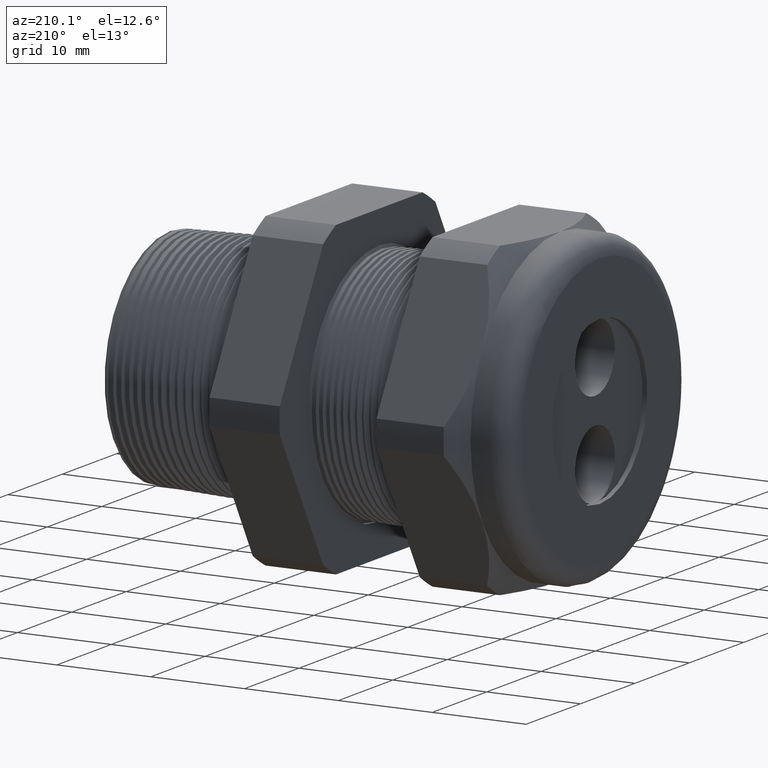
[diagram: clean part render]
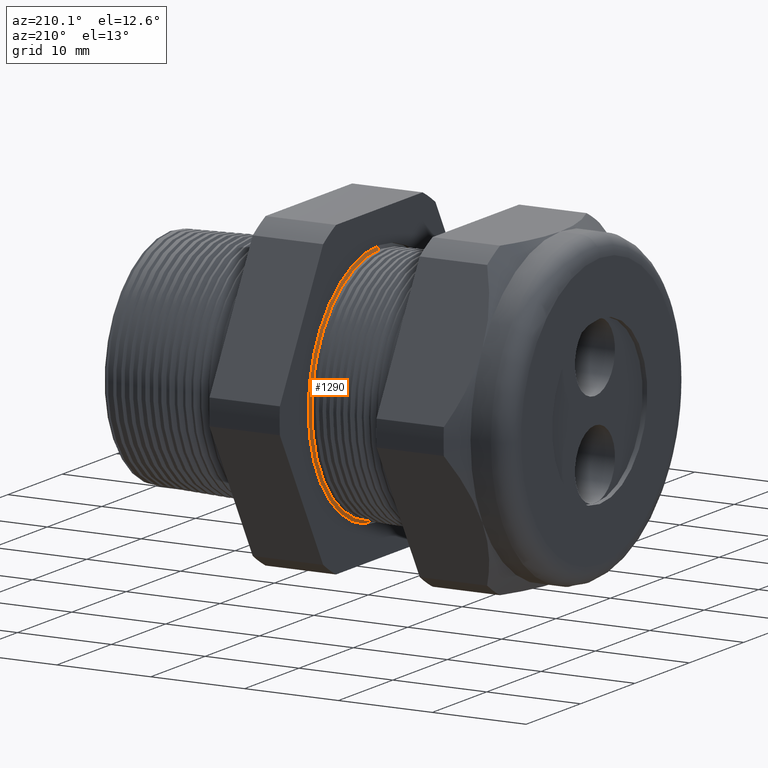
[diagram: same view with one face highlighted and labeled with its STEP entity id]
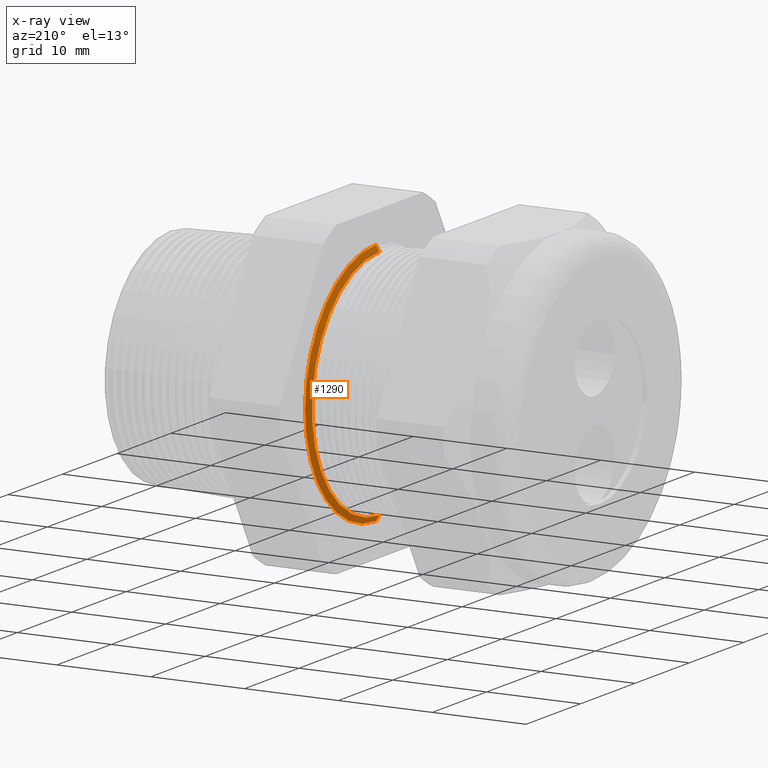
[diagram: x-ray of the same camera — body ghosted, the highlighted face saturated]
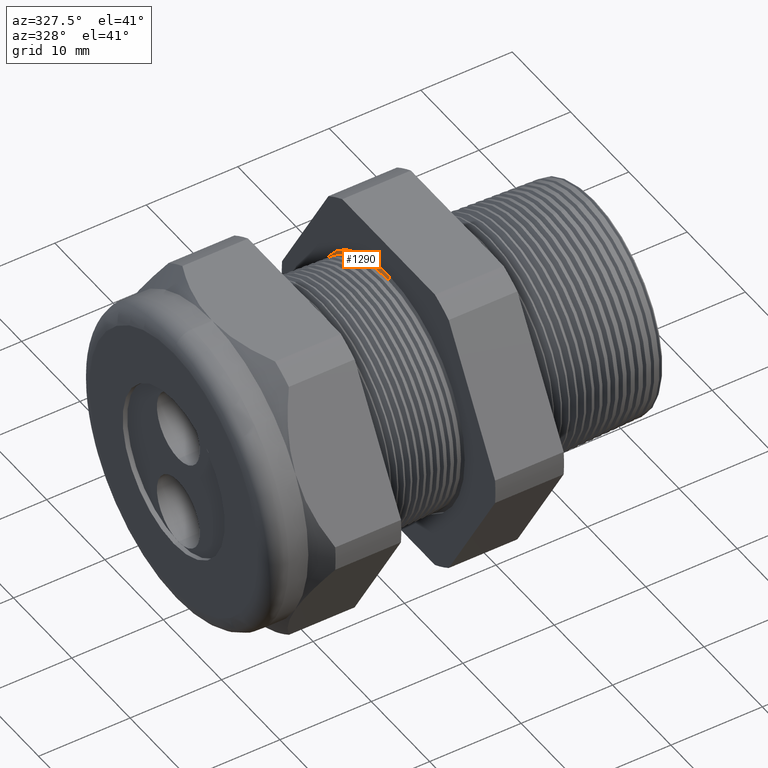
[diagram: same view with one face highlighted and labeled with its STEP entity id]
A machine part, auxiliary view. The second image highlights one B-rep face of the part: STEP entity #1290.
The next image is the same camera in x-ray: the body ghosted, the highlighted face saturated — about 0% of this face is hidden behind the body in this view.
A second angle (auxiliary view) of the same face is appended — the face is thin or edge-on in the first view.
In plain terms, the highlighted conical surface has half-angle 58 deg.
Its self-contained STEP definition (entity closure, byte-faithful):
#1290 = ADVANCED_FACE ( 'NONE', ( #3932 ), #3931, .T. ) ;
#1291 = EDGE_LOOP ( 'NONE', ( #1292, #1296, #1299, #1302 ) ) ;
#1292 = ORIENTED_EDGE ( 'NONE', *, *, #1293, .T. ) ;
#1293 = EDGE_CURVE ( 'NONE', #1294, #1295, #3926, .T. ) ;
#1294 = VERTEX_POINT ( 'NONE', #3922 ) ;
#1295 = VERTEX_POINT ( 'NONE', #3985 ) ;
#1296 = ORIENTED_EDGE ( 'NONE', *, *, #1297, .T. ) ;
#1297 = EDGE_CURVE ( 'NONE', #1295, #1298, #3984, .T. ) ;
#1298 = VERTEX_POINT ( 'NONE', #3980 ) ;
#1299 = ORIENTED_EDGE ( 'NONE', *, *, #1300, .F. ) ;
#1300 = EDGE_CURVE ( 'NONE', #1301, #1298, #3979, .T. ) ;
#1301 = VERTEX_POINT ( 'NONE', #3974 ) ;
#1302 = ORIENTED_EDGE ( 'NONE', *, *, #1303, .F. ) ;
#1303 = EDGE_CURVE ( 'NONE', #1294, #1301, #3973, .T. ) ;
#3922 = CARTESIAN_POINT ( 'NONE',  ( -0.6067624839723554400, 6.065888310177427100E-017, -0.4895114984791283900 ) ) ;
#3923 = DIRECTION ( 'NONE',  ( 0.0000000000000000000, 0.0000000000000000000, -1.000000000000000000 ) ) ;
#3924 = DIRECTION ( 'NONE',  ( 1.000000000000000000, 0.0000000000000000000, 0.0000000000000000000 ) ) ;
#3925 = AXIS2_PLACEMENT_3D ( 'NONE', #3930, #3924, #3923 ) ;
#3926 = CIRCLE ( 'NONE', #3925, 0.4895114984791283900 ) ;
#3927 = DIRECTION ( 'NONE',  ( 0.0000000000000000000, 0.0000000000000000000, -1.000000000000000000 ) ) ;
#3928 = DIRECTION ( 'NONE',  ( 1.000000000000000000, 0.0000000000000000000, 0.0000000000000000000 ) ) ;
#3929 = AXIS2_PLACEMENT_3D ( 'NONE', #3936, #3928, #3927 ) ;
#3930 = CARTESIAN_POINT ( 'NONE',  ( -0.6067624839723554400, 0.0000000000000000000, 0.0000000000000000000 ) ) ;
#3931 = CONICAL_SURFACE ( 'NONE', #3929, 0.4895114984791283900, 1.012290966156729200 ) ;
#3932 = FACE_OUTER_BOUND ( 'NONE', #1291, .T. ) ;
#3936 = CARTESIAN_POINT ( 'NONE',  ( -0.6067624839723554400, 0.0000000000000000000, 0.0000000000000000000 ) ) ;
#3970 = DIRECTION ( 'NONE',  ( 0.5299192642331896900, 0.0000000000000000000, -0.8480480961564355000 ) ) ;
#3971 = VECTOR ( 'NONE', #3970, 39.37007874015748100 ) ;
#3972 = CARTESIAN_POINT ( 'NONE',  ( -0.6067624839723554400, 0.0000000000000000000, -0.4895114984791283900 ) ) ;
#3973 = LINE ( 'NONE', #3972, #3971 ) ;
#3974 = CARTESIAN_POINT ( 'NONE',  ( -0.5914650324796654200, 6.297546252863908300E-017, -0.5139925383092116600 ) ) ;
#3975 = DIRECTION ( 'NONE',  ( 0.0000000000000000000, 0.0000000000000000000, -1.000000000000000000 ) ) ;
#3976 = DIRECTION ( 'NONE',  ( 1.000000000000000000, 0.0000000000000000000, 0.0000000000000000000 ) ) ;
#3977 = CARTESIAN_POINT ( 'NONE',  ( -0.5914650324796654200, 0.0000000000000000000, 0.0000000000000000000 ) ) ;
#3978 = AXIS2_PLACEMENT_3D ( 'NONE', #3977, #3976, #3975 ) ;
#3979 = CIRCLE ( 'NONE', #3978, 0.5139925383092116600 ) ;
#3980 = CARTESIAN_POINT ( 'NONE',  ( -0.5914650324796654200, 0.0000000000000000000, 0.5139925383092116600 ) ) ;
#3981 = DIRECTION ( 'NONE',  ( 0.5299192642331896900, 1.038559386480985500E-016, 0.8480480961564355000 ) ) ;
#3982 = VECTOR ( 'NONE', #3981, 39.37007874015748100 ) ;
#3983 = CARTESIAN_POINT ( 'NONE',  ( -0.6067624839723554400, 5.994786897582890700E-017, 0.4895114984791283900 ) ) ;
#3984 = LINE ( 'NONE', #3983, #3982 ) ;
#3985 = CARTESIAN_POINT ( 'NONE',  ( -0.6067624839723554400, 0.0000000000000000000, 0.4895114984791283900 ) ) ;